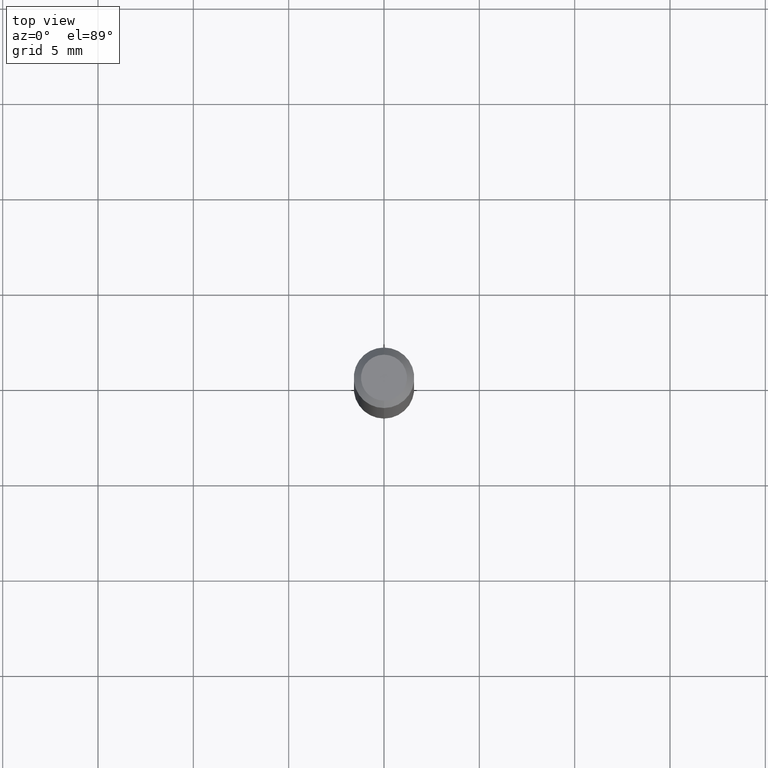
[diagram: clean part render]
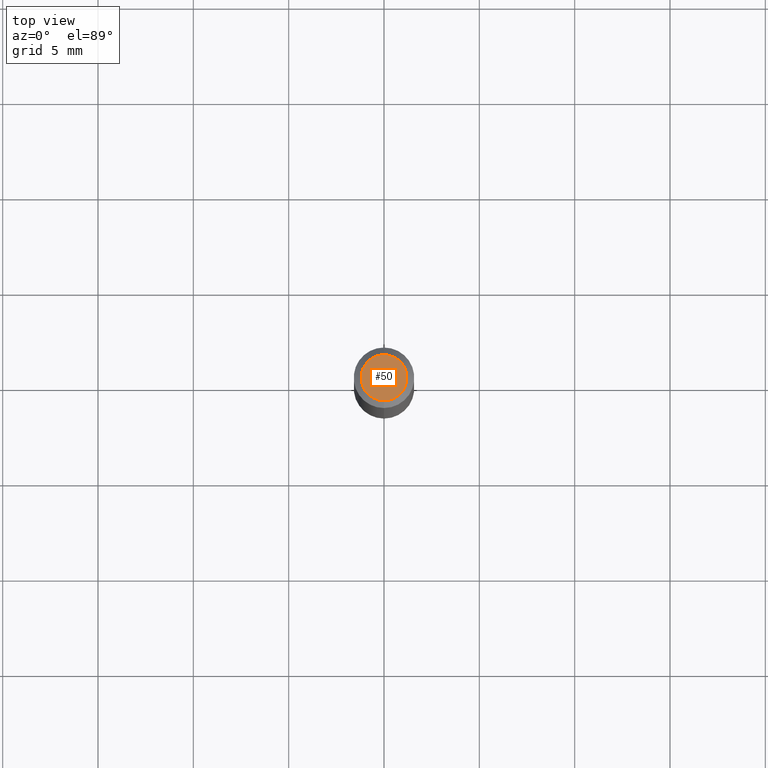
[diagram: same view with one face highlighted and labeled with its STEP entity id]
A machine part, top view. The second image highlights one B-rep face of the part: STEP entity #50.
In plain terms, the highlighted planar face has unit normal (0, -0, -1).
Its self-contained STEP definition (entity closure, byte-faithful):
#50 = ADVANCED_FACE ( 'NONE', ( #273 ), #461, .F. ) ;
#88 = CARTESIAN_POINT ( 'NONE',  ( -3.773273898774340269E-16, -0.04749999999999999362, 1.569841483477535198E-16 ) ) ;
#111 = VERTEX_POINT ( 'NONE', #88 ) ;
#113 = AXIS2_PLACEMENT_3D ( 'NONE', #230, #196, #356 ) ;
#172 = VERTEX_POINT ( 'NONE', #286 ) ;
#196 = DIRECTION ( 'NONE',  ( 2.445475389689012497E-29, -3.491471910890885040E-15, -1.000000000000000000 ) ) ;
#213 = ORIENTED_EDGE ( 'NONE', *, *, #451, .T. ) ;
#230 = CARTESIAN_POINT ( 'NONE',  ( 3.316907271900976096E-16, 0.04749999999999999362, -1.702752994770987529E-16 ) ) ;
#273 = FACE_OUTER_BOUND ( 'NONE', #422, .T. ) ;
#286 = CARTESIAN_POINT ( 'NONE',  ( 3.840629472727447874E-16, 0.04749999999999999362, -1.747056831868805136E-16 ) ) ;
#298 = CARTESIAN_POINT ( 'NONE',  ( 2.166878865830070512E-46, -3.093712055434299355E-32, -8.860767419563479969E-18 ) ) ;
#304 = AXIS2_PLACEMENT_3D ( 'NONE', #298, #328, #410 ) ;
#305 = DIRECTION ( 'NONE',  ( -2.445475389689012778E-29, 3.491471910890885040E-15, 1.000000000000000000 ) ) ;
#328 = DIRECTION ( 'NONE',  ( -2.445475389689012778E-29, 3.491471910890885040E-15, 1.000000000000000000 ) ) ;
#356 = DIRECTION ( 'NONE',  ( 6.982962677686265922E-15, 1.000000000000000000, -3.491471910890885040E-15 ) ) ;
#378 = EDGE_CURVE ( 'NONE', #172, #111, #431, .T. ) ;
#409 = CIRCLE ( 'NONE', #482, 0.04749999999999999362 ) ;
#410 = DIRECTION ( 'NONE',  ( -6.982962677686266711E-15, -1.000000000000000000, 3.491471910890885040E-15 ) ) ;
#422 = EDGE_LOOP ( 'NONE', ( #459, #213 ) ) ;
#431 = CIRCLE ( 'NONE', #304, 0.04749999999999999362 ) ;
#451 = EDGE_CURVE ( 'NONE', #111, #172, #409, .T. ) ;
#459 = ORIENTED_EDGE ( 'NONE', *, *, #378, .T. ) ;
#461 = PLANE ( 'NONE',  #113 ) ;
#463 = DIRECTION ( 'NONE',  ( -6.982962677686266711E-15, -1.000000000000000000, 3.491471910890885040E-15 ) ) ;
#482 = AXIS2_PLACEMENT_3D ( 'NONE', #504, #305, #463 ) ;
#504 = CARTESIAN_POINT ( 'NONE',  ( 2.166878865830070512E-46, -3.093712055434299355E-32, -8.860767419563479969E-18 ) ) ;